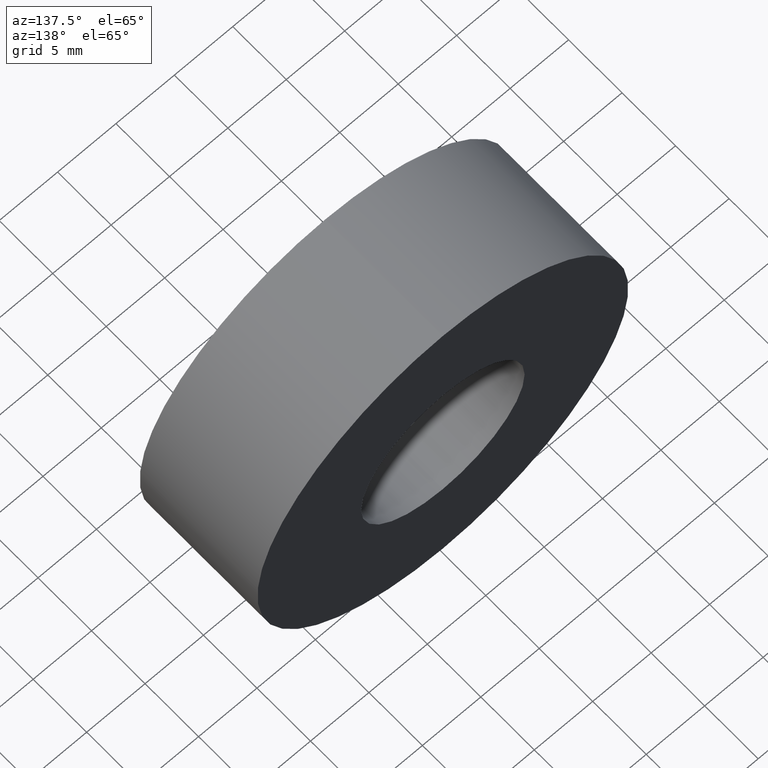
[diagram: clean part render]
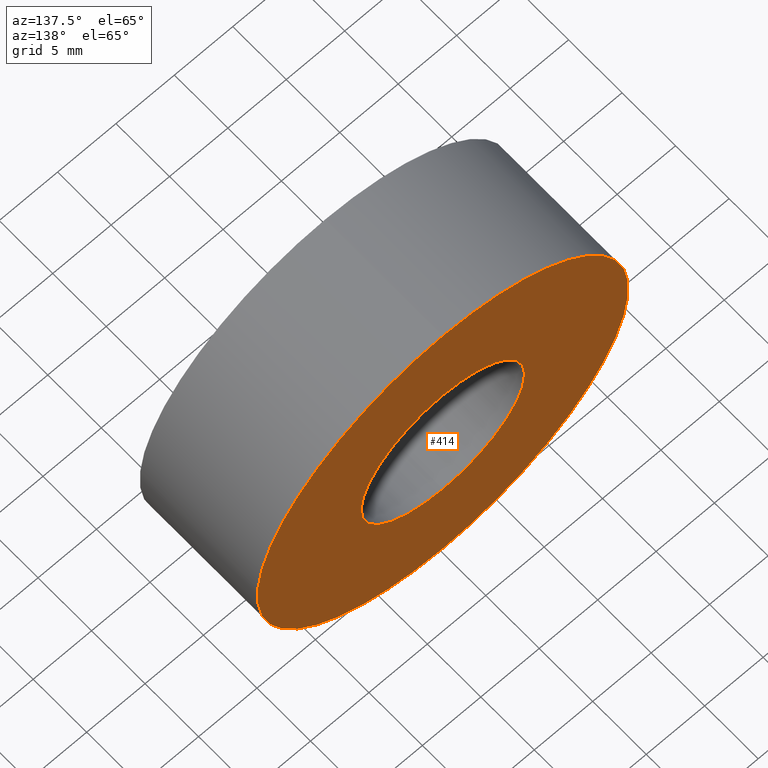
[diagram: same view with one face highlighted and labeled with its STEP entity id]
A machine part, auxiliary view. The second image highlights one B-rep face of the part: STEP entity #414.
In plain terms, the highlighted planar face has unit normal (0, -1, 0).
Its self-contained STEP definition (entity closure, byte-faithful):
#6 = CARTESIAN_POINT ( 'NONE',  ( 0.0000000000000000000, 10.99999999999999600, 0.0000000000000000000 ) ) ;
#8 = EDGE_LOOP ( 'NONE', ( #228, #15 ) ) ;
#9 = DIRECTION ( 'NONE',  ( -0.0000000000000000000, 1.000000000000000000, -0.0000000000000000000 ) ) ;
#15 = ORIENTED_EDGE ( 'NONE', *, *, #23, .F. ) ;
#23 = EDGE_CURVE ( 'NONE', #142, #312, #63, .T. ) ;
#25 = FACE_OUTER_BOUND ( 'NONE', #423, .T. ) ;
#31 = CIRCLE ( 'NONE', #364, 15.87500000000000400 ) ;
#47 = FACE_BOUND ( 'NONE', #8, .T. ) ;
#61 = VERTEX_POINT ( 'NONE', #390 ) ;
#63 = CIRCLE ( 'NONE', #89, 7.000000000000007100 ) ;
#72 = CARTESIAN_POINT ( 'NONE',  ( 7.000000000000007100, 11.00000000000000000, 0.0000000000000000000 ) ) ;
#88 = ORIENTED_EDGE ( 'NONE', *, *, #91, .T. ) ;
#89 = AXIS2_PLACEMENT_3D ( 'NONE', #6, #122, #202 ) ;
#91 = EDGE_CURVE ( 'NONE', #61, #198, #320, .T. ) ;
#122 = DIRECTION ( 'NONE',  ( -0.0000000000000000000, 1.000000000000000000, -0.0000000000000000000 ) ) ;
#142 = VERTEX_POINT ( 'NONE', #262 ) ;
#164 = AXIS2_PLACEMENT_3D ( 'NONE', #72, #389, #191 ) ;
#167 = DIRECTION ( 'NONE',  ( 0.0000000000000000000, 0.0000000000000000000, 1.000000000000000000 ) ) ;
#172 = CARTESIAN_POINT ( 'NONE',  ( 0.0000000000000000000, 10.99999999999999600, 0.0000000000000000000 ) ) ;
#177 = CARTESIAN_POINT ( 'NONE',  ( 0.0000000000000000000, 10.99999999999999600, 15.87500000000000400 ) ) ;
#191 = DIRECTION ( 'NONE',  ( 0.0000000000000000000, -0.0000000000000000000, -1.000000000000000000 ) ) ;
#198 = VERTEX_POINT ( 'NONE', #177 ) ;
#202 = DIRECTION ( 'NONE',  ( 0.0000000000000000000, 0.0000000000000000000, 1.000000000000000000 ) ) ;
#212 = CIRCLE ( 'NONE', #339, 7.000000000000007100 ) ;
#228 = ORIENTED_EDGE ( 'NONE', *, *, #265, .F. ) ;
#242 = EDGE_CURVE ( 'NONE', #198, #61, #31, .T. ) ;
#257 = PLANE ( 'NONE',  #164 ) ;
#262 = CARTESIAN_POINT ( 'NONE',  ( 8.572527594031482100E-016, 10.99999999999999600, -7.000000000000008000 ) ) ;
#265 = EDGE_CURVE ( 'NONE', #312, #142, #212, .T. ) ;
#272 = CARTESIAN_POINT ( 'NONE',  ( 0.0000000000000000000, 10.99999999999999600, 0.0000000000000000000 ) ) ;
#311 = DIRECTION ( 'NONE',  ( 0.0000000000000000000, 0.0000000000000000000, 1.000000000000000000 ) ) ;
#312 = VERTEX_POINT ( 'NONE', #379 ) ;
#320 = CIRCLE ( 'NONE', #404, 15.87500000000000400 ) ;
#339 = AXIS2_PLACEMENT_3D ( 'NONE', #172, #410, #167 ) ;
#364 = AXIS2_PLACEMENT_3D ( 'NONE', #272, #412, #418 ) ;
#375 = ORIENTED_EDGE ( 'NONE', *, *, #242, .T. ) ;
#379 = CARTESIAN_POINT ( 'NONE',  ( 0.0000000000000000000, 10.99999999999999600, 7.000000000000007100 ) ) ;
#389 = DIRECTION ( 'NONE',  ( 0.0000000000000000000, -1.000000000000000000, 0.0000000000000000000 ) ) ;
#390 = CARTESIAN_POINT ( 'NONE',  ( 1.944126793646423600E-015, 10.99999999999999600, -15.87500000000000400 ) ) ;
#404 = AXIS2_PLACEMENT_3D ( 'NONE', #407, #9, #311 ) ;
#407 = CARTESIAN_POINT ( 'NONE',  ( 0.0000000000000000000, 10.99999999999999600, 0.0000000000000000000 ) ) ;
#410 = DIRECTION ( 'NONE',  ( -0.0000000000000000000, 1.000000000000000000, -0.0000000000000000000 ) ) ;
#412 = DIRECTION ( 'NONE',  ( -0.0000000000000000000, 1.000000000000000000, -0.0000000000000000000 ) ) ;
#414 = ADVANCED_FACE ( 'NONE', ( #47, #25 ), #257, .F. ) ;
#418 = DIRECTION ( 'NONE',  ( 0.0000000000000000000, 0.0000000000000000000, 1.000000000000000000 ) ) ;
#423 = EDGE_LOOP ( 'NONE', ( #375, #88 ) ) ;